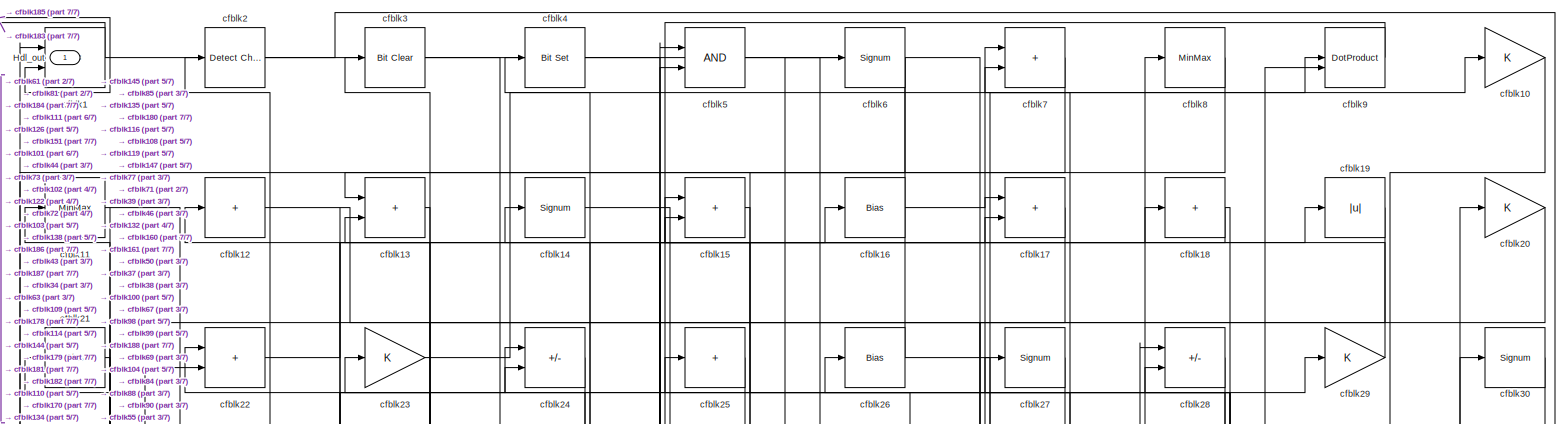
[diagram: root canvas - part 1/7, full width, top band]
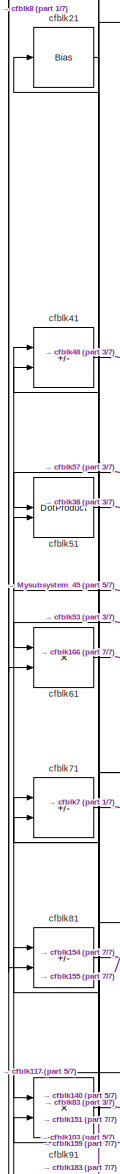
[diagram: root canvas - part 2/7, top left region]
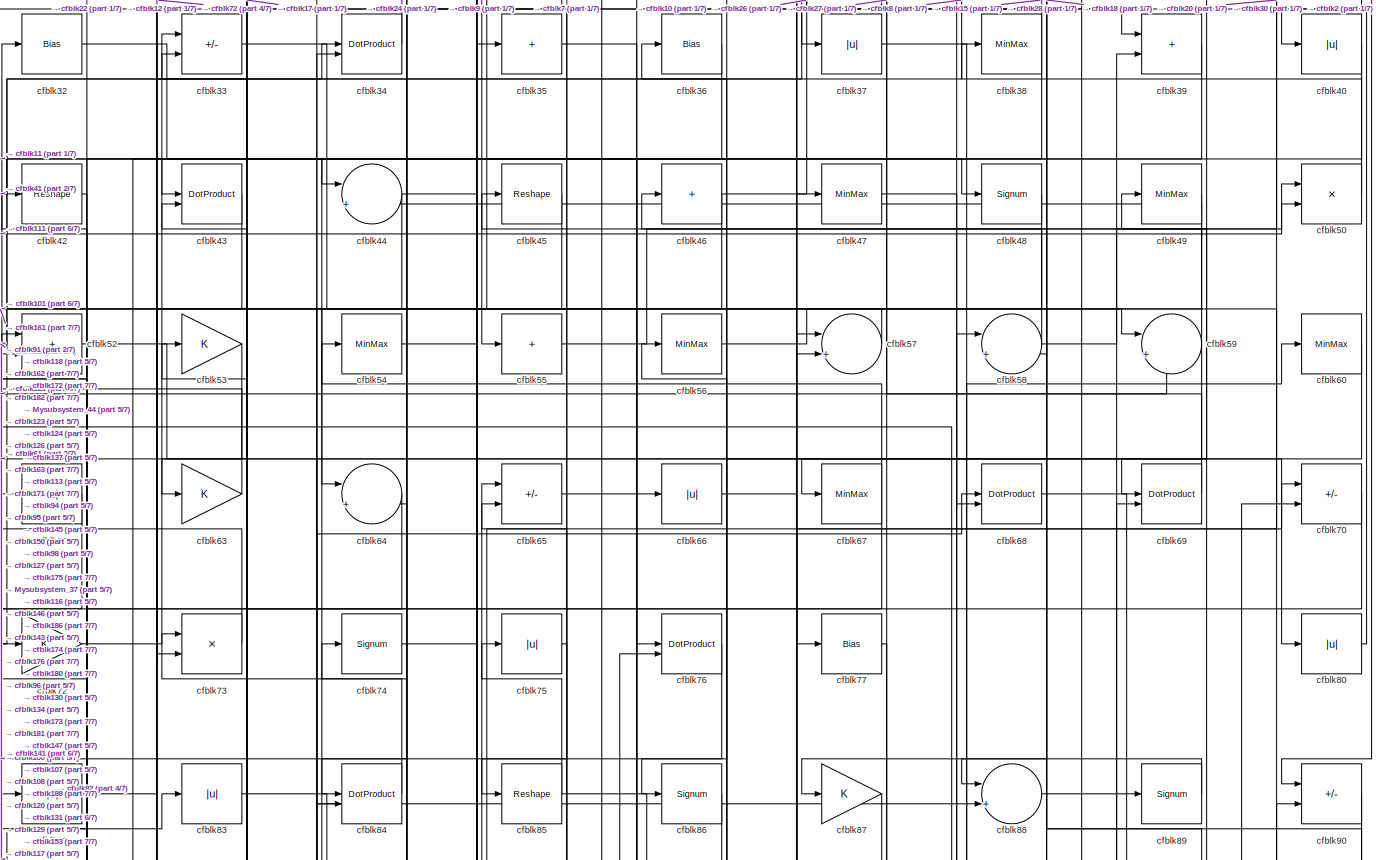
[diagram: root canvas - part 3/7, full width, top band]
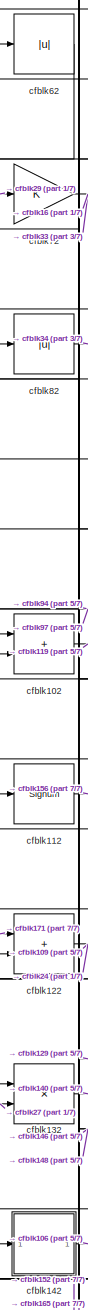
[diagram: root canvas - part 4/7, middle left region]
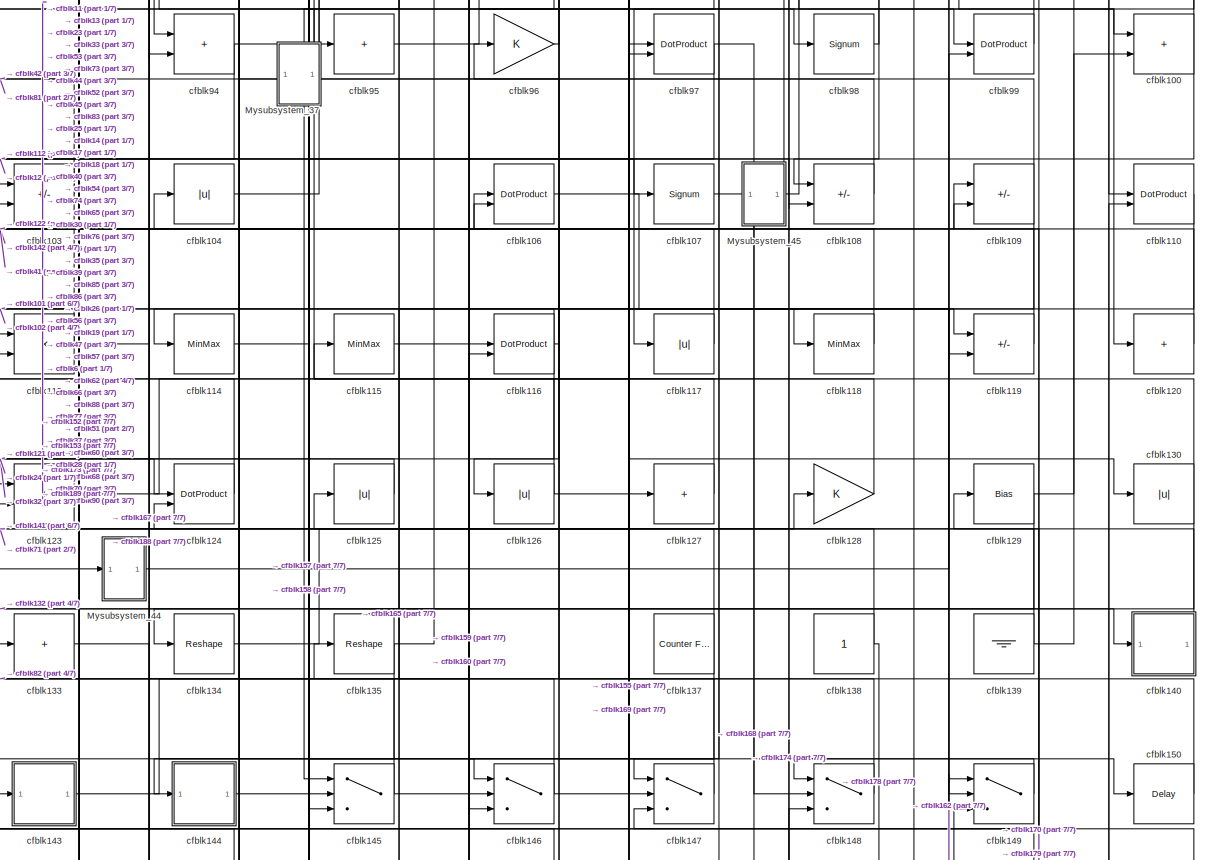
[diagram: root canvas - part 5/7, full width, middle band]
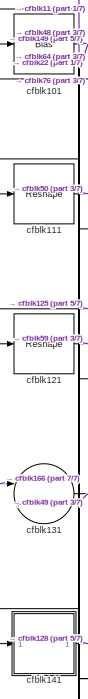
[diagram: root canvas - part 6/7, middle left region]
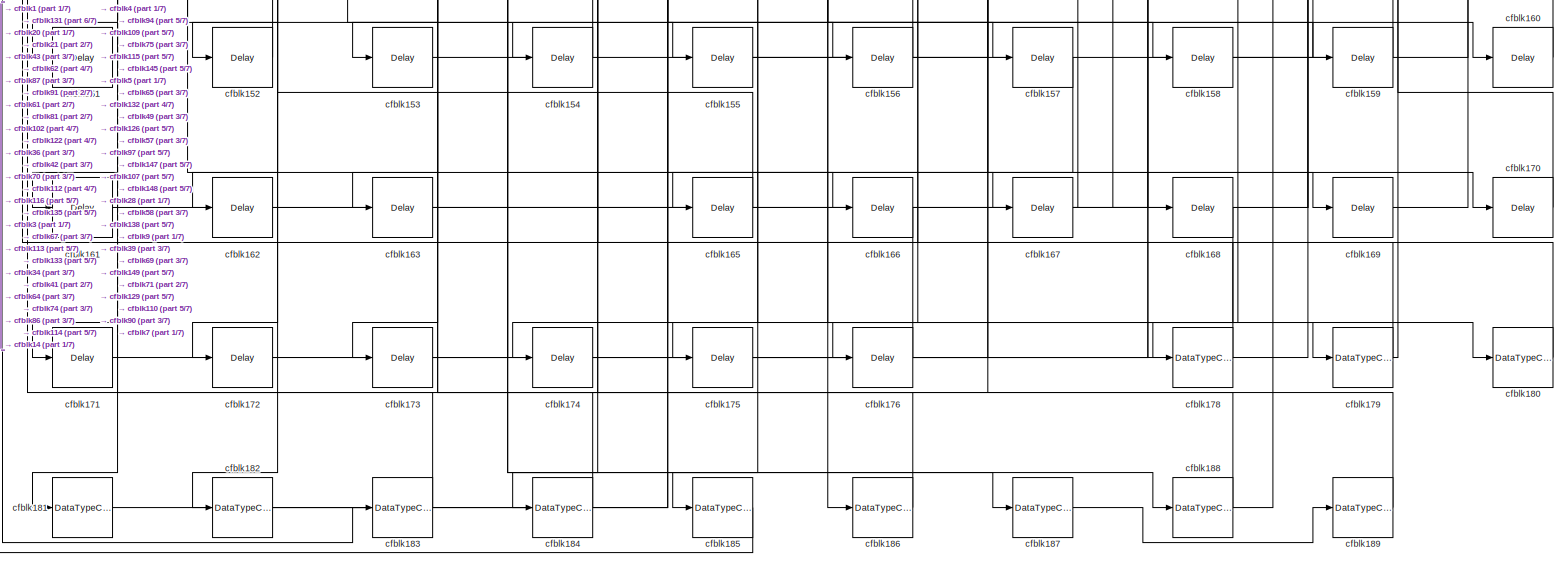
[diagram: root canvas - part 7/7, full width, bottom band]
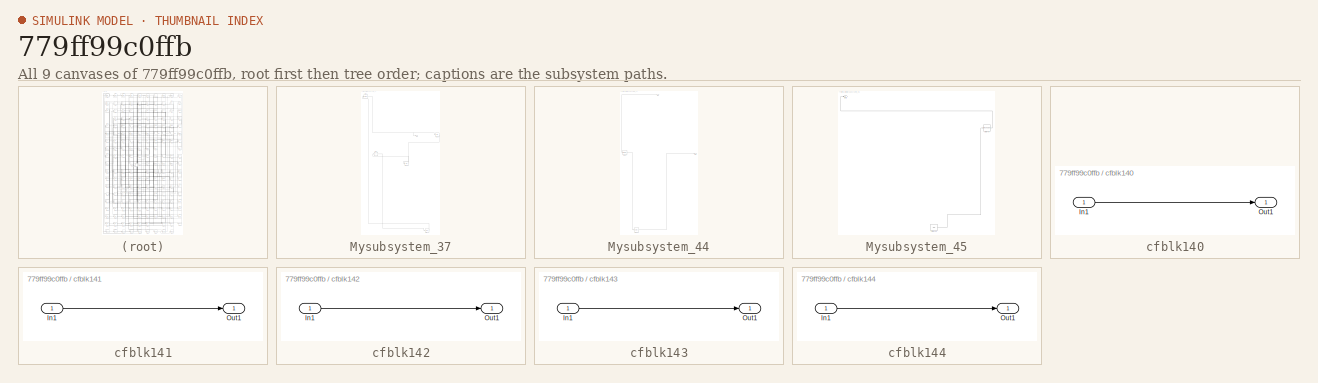
[diagram: thumbnail index - all 9 canvases of the model, root first then tree order]
MODEL slx_779ff99c0ffb
KIND model
CONFIG AbsTol = auto
CONFIG EnableMultiTasking = off
CONFIG FixedStep = auto
CONFIG MaxStep = auto
CONFIG MinStep = auto
CONFIG RelTol = 1e-3
CONFIG SampleTimeConstraint = Unconstrained
CONFIG SolverName = VariableStepAuto
CONFIG StartTime = 0.0
CONFIG StopTime = 10.0
BLOCK [Outport] Hdl_out
  OutDataTypeStr = uint8
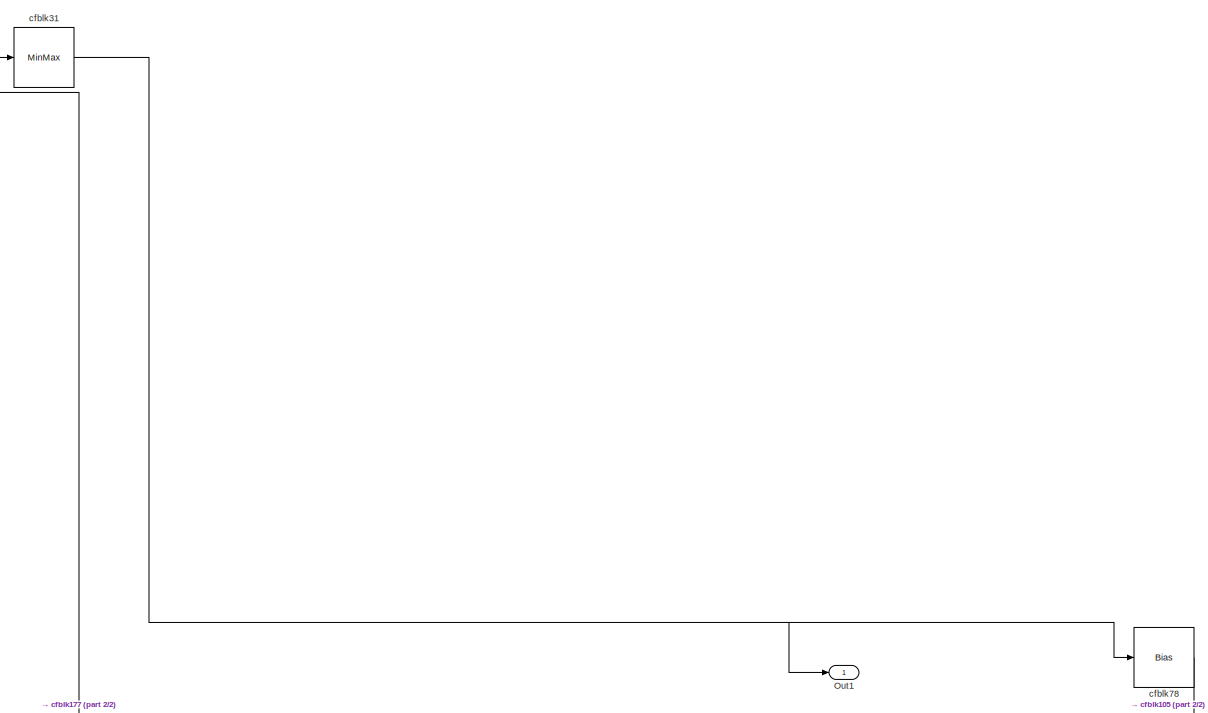
[diagram: Mysubsystem_37 - part 1/2, full width, top band]
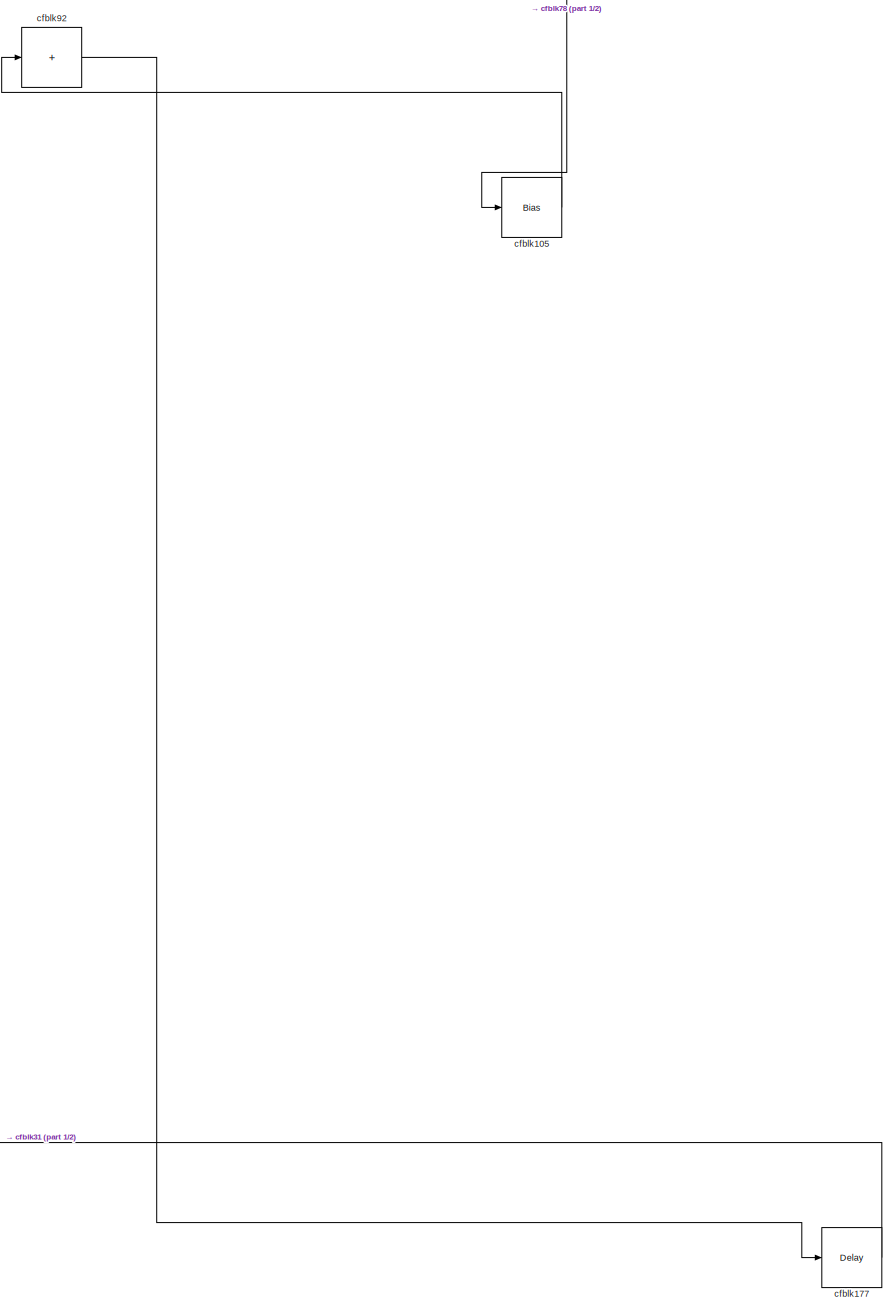
[diagram: Mysubsystem_37 - part 2/2, bottom center region]
BLOCK [SubSystem] Mysubsystem_37
  RTWFcnName = Mysubsystem_37
  RTWFcnNameOpts = User specified
  RTWFileNameOpts = Use function name
  RTWSystemCode = Reusable function
  TreatAsAtomicUnit = on
BLOCK [Outport] Mysubsystem_37/Out1
BLOCK [Bias] Mysubsystem_37/cfblk105
  Bias = 0.0
  SaturateOnIntegerOverflow = off
BLOCK [Delay] Mysubsystem_37/cfblk177
  InputPortMap = u0
  SampleTime = 1
BLOCK [MinMax] Mysubsystem_37/cfblk31
BLOCK [Bias] Mysubsystem_37/cfblk78
  Bias = 0.0
  SaturateOnIntegerOverflow = off
BLOCK [Sum] Mysubsystem_37/cfblk92
  IconShape = rectangular
  Inputs = +
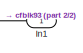
[diagram: Mysubsystem_44 - part 1/2, top center region]
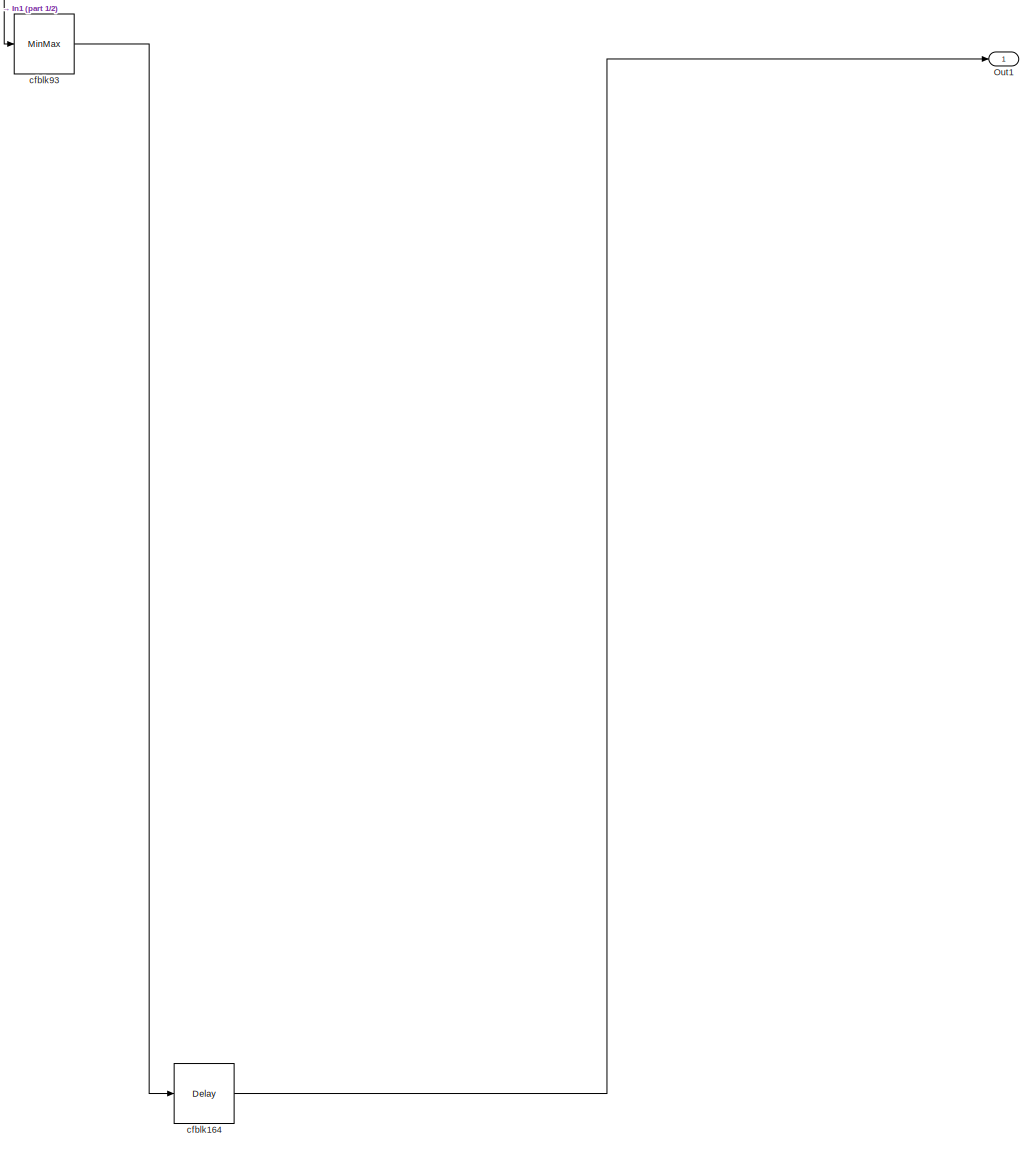
[diagram: Mysubsystem_44 - part 2/2, full width, bottom band]
BLOCK [SubSystem] Mysubsystem_44
  RTWFcnName = Mysubsystem_44
  RTWFcnNameOpts = User specified
  RTWFileNameOpts = Use function name
  RTWSystemCode = Reusable function
  TreatAsAtomicUnit = on
BLOCK [Inport] Mysubsystem_44/In1
BLOCK [Outport] Mysubsystem_44/Out1
BLOCK [Delay] Mysubsystem_44/cfblk164
  InputPortMap = u0
  SampleTime = 1
BLOCK [MinMax] Mysubsystem_44/cfblk93
BLOCK [SubSystem] Mysubsystem_45
  RTWFcnName = Mysubsystem_45
  RTWFcnNameOpts = User specified
  RTWFileNameOpts = Use function name
  RTWSystemCode = Reusable function
  TreatAsAtomicUnit = on
BLOCK [Outport] Mysubsystem_45/Out1
BLOCK [Ground] Mysubsystem_45/cfblk136
BLOCK [Reshape] Mysubsystem_45/cfblk79
BLOCK [RelationalOperator] cfblk1
  InputSameDT = off
  Operator = <=
  OutDataTypeStr = boolean
BLOCK [Gain] cfblk10
  OutDataTypeStr = uint8
BLOCK [Sum] cfblk100
  IconShape = rectangular
  OutDataTypeStr = uint8
BLOCK [Bias] cfblk101
  Bias = 0.0
  SaturateOnIntegerOverflow = off
BLOCK [Sum] cfblk102
  IconShape = rectangular
  OutDataTypeStr = uint8
BLOCK [Sum] cfblk103
  IconShape = rectangular
  Inputs = +-
  OutDataTypeStr = uint8
BLOCK [Abs] cfblk104
  OutDataTypeStr = uint8
  SaturateOnIntegerOverflow = off
BLOCK [DotProduct] cfblk106
  OutDataTypeStr = uint8
BLOCK [Signum] cfblk107
BLOCK [Sum] cfblk108
  IconShape = rectangular
  Inputs = +-
  OutDataTypeStr = uint8
BLOCK [Sum] cfblk109
  IconShape = rectangular
  Inputs = +-
  OutDataTypeStr = uint8
BLOCK [MinMax] cfblk11
  OutDataTypeStr = uint8
BLOCK [DotProduct] cfblk110
  OutDataTypeStr = uint8
BLOCK [Reshape] cfblk111
BLOCK [Signum] cfblk112
BLOCK [Product] cfblk113
  Inputs = */
  OutDataTypeStr = uint8
  RndMeth = Zero
  SaturateOnIntegerOverflow = on
BLOCK [MinMax] cfblk114
  OutDataTypeStr = uint8
BLOCK [MinMax] cfblk115
  OutDataTypeStr = uint8
BLOCK [DotProduct] cfblk116
  OutDataTypeStr = uint8
BLOCK [Abs] cfblk117
  OutDataTypeStr = uint8
  SaturateOnIntegerOverflow = off
BLOCK [MinMax] cfblk118
  OutDataTypeStr = uint8
BLOCK [Sum] cfblk119
  IconShape = rectangular
  Inputs = +-
  OutDataTypeStr = uint8
BLOCK [Sum] cfblk12
  IconShape = rectangular
  Inputs = +
  OutDataTypeStr = uint8
BLOCK [Sum] cfblk120
  IconShape = rectangular
  Inputs = +
  OutDataTypeStr = uint8
BLOCK [Reshape] cfblk121
BLOCK [Sum] cfblk122
  IconShape = rectangular
  OutDataTypeStr = uint8
BLOCK [Sum] cfblk123
  IconShape = rectangular
  OutDataTypeStr = uint8
BLOCK [DotProduct] cfblk124
  OutDataTypeStr = uint8
BLOCK [Abs] cfblk125
  OutDataTypeStr = uint8
  SaturateOnIntegerOverflow = off
BLOCK [Abs] cfblk126
  OutDataTypeStr = uint8
  SaturateOnIntegerOverflow = off
BLOCK [Sum] cfblk127
  IconShape = rectangular
  Inputs = +
  OutDataTypeStr = uint8
BLOCK [Gain] cfblk128
  OutDataTypeStr = uint8
BLOCK [Bias] cfblk129
  Bias = 0.0
  SaturateOnIntegerOverflow = off
BLOCK [Sum] cfblk13
  IconShape = rectangular
  OutDataTypeStr = uint8
BLOCK [Abs] cfblk130
  OutDataTypeStr = uint8
  SaturateOnIntegerOverflow = off
BLOCK [Sum] cfblk131
  Inputs = |++
  OutDataTypeStr = uint8
BLOCK [Product] cfblk132
  Inputs = */
  OutDataTypeStr = uint8
  RndMeth = Zero
  SaturateOnIntegerOverflow = on
BLOCK [Sum] cfblk133
  IconShape = rectangular
  Inputs = +
  OutDataTypeStr = uint8
BLOCK [Reshape] cfblk134
BLOCK [Reshape] cfblk135
BLOCK [Reference] cfblk137  REF=hdlsllib/Sources/Counter
Free-Running
  SourceBlock = hdlsllib/Sources/Counter\nFree-Running
  SourceType = Counter Free-Running
BLOCK [Constant] cfblk138
  OutDataTypeStr = uint8
  SampleTime = -1
BLOCK [Ground] cfblk139
BLOCK [Signum] cfblk14
BLOCK [SubSystem] cfblk140
  LibrarySourceBlock = hdlsllib/Ports &\nSubsystems/Subsystem
BLOCK [Inport] cfblk140/In1
BLOCK [Outport] cfblk140/Out1
BLOCK [SubSystem] cfblk141
  LibrarySourceBlock = hdlsllib/Ports &\nSubsystems/Subsystem
BLOCK [Inport] cfblk141/In1
BLOCK [Outport] cfblk141/Out1
BLOCK [SubSystem] cfblk142
  LibrarySourceBlock = hdlsllib/Ports &\nSubsystems/Subsystem
BLOCK [Inport] cfblk142/In1
BLOCK [Outport] cfblk142/Out1
BLOCK [SubSystem] cfblk143
  LibrarySourceBlock = hdlsllib/Ports &\nSubsystems/Subsystem
BLOCK [Inport] cfblk143/In1
BLOCK [Outport] cfblk143/Out1
BLOCK [SubSystem] cfblk144
  LibrarySourceBlock = hdlsllib/Ports &\nSubsystems/Subsystem
BLOCK [Inport] cfblk144/In1
BLOCK [Outport] cfblk144/Out1
BLOCK [Switch] cfblk145
  InputSameDT = off
  OutDataTypeStr = uint8
  SaturateOnIntegerOverflow = off
BLOCK [Switch] cfblk146
  InputSameDT = off
  OutDataTypeStr = uint8
  SaturateOnIntegerOverflow = off
BLOCK [Switch] cfblk147
  InputSameDT = off
  OutDataTypeStr = uint8
  SaturateOnIntegerOverflow = off
BLOCK [Switch] cfblk148
  InputSameDT = off
  OutDataTypeStr = uint8
  SaturateOnIntegerOverflow = off
BLOCK [Switch] cfblk149
  InputSameDT = off
  OutDataTypeStr = uint8
  SaturateOnIntegerOverflow = off
BLOCK [Sum] cfblk15
  IconShape = rectangular
  OutDataTypeStr = uint8
BLOCK [Delay] cfblk150
  InputPortMap = u0
  SampleTime = 1
BLOCK [Delay] cfblk151
  InputPortMap = u0
  SampleTime = 1
BLOCK [Delay] cfblk152
  InputPortMap = u0
  SampleTime = 1
BLOCK [Delay] cfblk153
  InputPortMap = u0
  SampleTime = 1
BLOCK [Delay] cfblk154
  InputPortMap = u0
  SampleTime = 1
BLOCK [Delay] cfblk155
  InputPortMap = u0
  SampleTime = 1
BLOCK [Delay] cfblk156
  InputPortMap = u0
  SampleTime = 1
BLOCK [Delay] cfblk157
  InputPortMap = u0
  SampleTime = 1
BLOCK [Delay] cfblk158
  InputPortMap = u0
  SampleTime = 1
BLOCK [Delay] cfblk159
  InputPortMap = u0
  SampleTime = 1
BLOCK [Bias] cfblk16
  Bias = 0.0
  SaturateOnIntegerOverflow = off
BLOCK [Delay] cfblk160
  InputPortMap = u0
  SampleTime = 1
BLOCK [Delay] cfblk161
  InputPortMap = u0
  SampleTime = 1
BLOCK [Delay] cfblk162
  InputPortMap = u0
  SampleTime = 1
BLOCK [Delay] cfblk163
  InputPortMap = u0
  SampleTime = 1
BLOCK [Delay] cfblk165
  InputPortMap = u0
  SampleTime = 1
BLOCK [Delay] cfblk166
  InputPortMap = u0
  SampleTime = 1
BLOCK [Delay] cfblk167
  InputPortMap = u0
  SampleTime = 1
BLOCK [Delay] cfblk168
  InputPortMap = u0
  SampleTime = 1
BLOCK [Delay] cfblk169
  InputPortMap = u0
  SampleTime = 1
BLOCK [Sum] cfblk17
  IconShape = rectangular
  OutDataTypeStr = uint8
BLOCK [Delay] cfblk170
  InputPortMap = u0
  SampleTime = 1
BLOCK [Delay] cfblk171
  InputPortMap = u0
  SampleTime = 1
BLOCK [Delay] cfblk172
  InputPortMap = u0
  SampleTime = 1
BLOCK [Delay] cfblk173
  InputPortMap = u0
  SampleTime = 1
BLOCK [Delay] cfblk174
  InputPortMap = u0
  SampleTime = 1
BLOCK [Delay] cfblk175
  InputPortMap = u0
  SampleTime = 1
BLOCK [Delay] cfblk176
  InputPortMap = u0
  SampleTime = 1
BLOCK [DataTypeConversion] cfblk178
  OutDataTypeStr = uint8
  RndMeth = Floor
  SaturateOnIntegerOverflow = off
BLOCK [DataTypeConversion] cfblk179
  OutDataTypeStr = uint8
  RndMeth = Floor
  SaturateOnIntegerOverflow = off
BLOCK [Sum] cfblk18
  IconShape = rectangular
  Inputs = +
  OutDataTypeStr = uint8
BLOCK [DataTypeConversion] cfblk180
  OutDataTypeStr = uint8
  RndMeth = Floor
  SaturateOnIntegerOverflow = off
BLOCK [DataTypeConversion] cfblk181
  OutDataTypeStr = uint8
  RndMeth = Floor
  SaturateOnIntegerOverflow = off
BLOCK [DataTypeConversion] cfblk182
  OutDataTypeStr = uint8
  RndMeth = Floor
  SaturateOnIntegerOverflow = off
BLOCK [DataTypeConversion] cfblk183
  OutDataTypeStr = uint8
  RndMeth = Floor
  SaturateOnIntegerOverflow = off
BLOCK [DataTypeConversion] cfblk184
  OutDataTypeStr = uint8
  RndMeth = Floor
  SaturateOnIntegerOverflow = off
BLOCK [DataTypeConversion] cfblk185
  OutDataTypeStr = uint8
  RndMeth = Floor
  SaturateOnIntegerOverflow = off
BLOCK [DataTypeConversion] cfblk186
  OutDataTypeStr = uint8
  RndMeth = Floor
  SaturateOnIntegerOverflow = off
BLOCK [DataTypeConversion] cfblk187
  OutDataTypeStr = uint8
  RndMeth = Floor
  SaturateOnIntegerOverflow = off
BLOCK [DataTypeConversion] cfblk188
  OutDataTypeStr = uint8
  RndMeth = Floor
  SaturateOnIntegerOverflow = off
BLOCK [DataTypeConversion] cfblk189
  OutDataTypeStr = uint8
  RndMeth = Floor
  SaturateOnIntegerOverflow = off
BLOCK [Abs] cfblk19
  OutDataTypeStr = uint8
  SaturateOnIntegerOverflow = off
BLOCK [Reference] cfblk2  REF=simulink/Logic and Bit
Operations/Detect
Change
  LibrarySourceBlock = hdlsllib/Logic and Bit\nOperations/Detect\nChange
  SourceBlock = simulink/Logic and Bit\nOperations/Detect\nChange
  SourceType = Detect Change
BLOCK [Gain] cfblk20
  OutDataTypeStr = uint8
BLOCK [Bias] cfblk21
  Bias = 0.0
  SaturateOnIntegerOverflow = off
BLOCK [Sum] cfblk22
  IconShape = rectangular
  OutDataTypeStr = uint8
BLOCK [Gain] cfblk23
  OutDataTypeStr = uint8
BLOCK [Sum] cfblk24
  IconShape = rectangular
  Inputs = +-
  OutDataTypeStr = uint8
BLOCK [Sum] cfblk25
  IconShape = rectangular
  Inputs = +
  OutDataTypeStr = uint8
BLOCK [Bias] cfblk26
  Bias = 0.0
  SaturateOnIntegerOverflow = off
BLOCK [Signum] cfblk27
BLOCK [Sum] cfblk28
  IconShape = rectangular
  Inputs = +-
  OutDataTypeStr = uint8
BLOCK [Gain] cfblk29
  OutDataTypeStr = uint8
BLOCK [Reference] cfblk3  REF=simulink/Logic and Bit
Operations/Bit Clear
  LibrarySourceBlock = hdlsllib/Logic and Bit\nOperations/Bit Clear
  SourceBlock = simulink/Logic and Bit\nOperations/Bit Clear
  SourceType = Bit Clear
BLOCK [Signum] cfblk30
BLOCK [Bias] cfblk32
  Bias = 0.0
  SaturateOnIntegerOverflow = off
BLOCK [Sum] cfblk33
  IconShape = rectangular
  Inputs = +-
  OutDataTypeStr = uint8
BLOCK [DotProduct] cfblk34
  OutDataTypeStr = uint8
BLOCK [Sum] cfblk35
  IconShape = rectangular
  Inputs = +
  OutDataTypeStr = uint8
BLOCK [Bias] cfblk36
  Bias = 0.0
  SaturateOnIntegerOverflow = off
BLOCK [Abs] cfblk37
  OutDataTypeStr = uint8
  SaturateOnIntegerOverflow = off
BLOCK [MinMax] cfblk38
  OutDataTypeStr = uint8
BLOCK [Sum] cfblk39
  IconShape = rectangular
  OutDataTypeStr = uint8
BLOCK [Reference] cfblk4  REF=simulink/Logic and Bit
Operations/Bit Set
  LibrarySourceBlock = hdlsllib/Logic and Bit\nOperations/Bit Set
  SourceBlock = simulink/Logic and Bit\nOperations/Bit Set
  SourceType = Bit Set
BLOCK [Abs] cfblk40
  OutDataTypeStr = uint8
  SaturateOnIntegerOverflow = off
BLOCK [Sum] cfblk41
  IconShape = rectangular
  Inputs = +-
  OutDataTypeStr = uint8
BLOCK [Reshape] cfblk42
BLOCK [DotProduct] cfblk43
  OutDataTypeStr = uint8
BLOCK [Sum] cfblk44
  Inputs = |++
  OutDataTypeStr = uint8
BLOCK [Reshape] cfblk45
BLOCK [Sum] cfblk46
  IconShape = rectangular
  Inputs = +
  OutDataTypeStr = uint8
BLOCK [MinMax] cfblk47
  OutDataTypeStr = uint8
BLOCK [Signum] cfblk48
BLOCK [MinMax] cfblk49
  OutDataTypeStr = uint8
BLOCK [Logic] cfblk5
  AllPortsSameDT = off
  OutDataTypeStr = boolean
BLOCK [Product] cfblk50
  Inputs = */
  OutDataTypeStr = uint8
  RndMeth = Zero
  SaturateOnIntegerOverflow = on
BLOCK [DotProduct] cfblk51
  OutDataTypeStr = uint8
BLOCK [Sum] cfblk52
  IconShape = rectangular
  OutDataTypeStr = uint8
BLOCK [Gain] cfblk53
  OutDataTypeStr = uint8
BLOCK [MinMax] cfblk54
  OutDataTypeStr = uint8
BLOCK [Sum] cfblk55
  IconShape = rectangular
  Inputs = +
  OutDataTypeStr = uint8
BLOCK [MinMax] cfblk56
  OutDataTypeStr = uint8
BLOCK [Sum] cfblk57
  Inputs = |++
  OutDataTypeStr = uint8
BLOCK [Sum] cfblk58
  Inputs = |++
  OutDataTypeStr = uint8
BLOCK [Sum] cfblk59
  Inputs = |++
  OutDataTypeStr = uint8
BLOCK [Signum] cfblk6
BLOCK [MinMax] cfblk60
  OutDataTypeStr = uint8
BLOCK [Product] cfblk61
  Inputs = */
  OutDataTypeStr = uint8
  RndMeth = Zero
  SaturateOnIntegerOverflow = on
BLOCK [Abs] cfblk62
  OutDataTypeStr = uint8
  SaturateOnIntegerOverflow = off
BLOCK [Gain] cfblk63
  OutDataTypeStr = uint8
BLOCK [Sum] cfblk64
  Inputs = |++
  OutDataTypeStr = uint8
BLOCK [Sum] cfblk65
  IconShape = rectangular
  Inputs = +-
  OutDataTypeStr = uint8
BLOCK [Abs] cfblk66
  OutDataTypeStr = uint8
  SaturateOnIntegerOverflow = off
BLOCK [MinMax] cfblk67
  OutDataTypeStr = uint8
BLOCK [DotProduct] cfblk68
  OutDataTypeStr = uint8
BLOCK [DotProduct] cfblk69
  OutDataTypeStr = uint8
BLOCK [Sum] cfblk7
  IconShape = rectangular
  OutDataTypeStr = uint8
BLOCK [Sum] cfblk70
  IconShape = rectangular
  Inputs = +-
  OutDataTypeStr = uint8
BLOCK [Sum] cfblk71
  IconShape = rectangular
  Inputs = +-
  OutDataTypeStr = uint8
BLOCK [Gain] cfblk72
  OutDataTypeStr = uint8
BLOCK [Product] cfblk73
  Inputs = */
  OutDataTypeStr = uint8
  RndMeth = Zero
  SaturateOnIntegerOverflow = on
BLOCK [Signum] cfblk74
BLOCK [Abs] cfblk75
  OutDataTypeStr = uint8
  SaturateOnIntegerOverflow = off
BLOCK [DotProduct] cfblk76
  OutDataTypeStr = uint8
BLOCK [Bias] cfblk77
  Bias = 0.0
  SaturateOnIntegerOverflow = off
BLOCK [MinMax] cfblk8
  OutDataTypeStr = uint8
BLOCK [Abs] cfblk80
  OutDataTypeStr = uint8
  SaturateOnIntegerOverflow = off
BLOCK [Sum] cfblk81
  IconShape = rectangular
  Inputs = +-
  OutDataTypeStr = uint8
BLOCK [Abs] cfblk82
  OutDataTypeStr = uint8
  SaturateOnIntegerOverflow = off
BLOCK [Abs] cfblk83
  OutDataTypeStr = uint8
  SaturateOnIntegerOverflow = off
BLOCK [DotProduct] cfblk84
  OutDataTypeStr = uint8
BLOCK [Reshape] cfblk85
BLOCK [Signum] cfblk86
BLOCK [Gain] cfblk87
  OutDataTypeStr = uint8
BLOCK [Sum] cfblk88
  Inputs = |++
  OutDataTypeStr = uint8
BLOCK [Signum] cfblk89
BLOCK [DotProduct] cfblk9
  OutDataTypeStr = uint8
BLOCK [Sum] cfblk90
  IconShape = rectangular
  Inputs = +-
  OutDataTypeStr = uint8
BLOCK [Product] cfblk91
  Inputs = */
  OutDataTypeStr = uint8
  RndMeth = Zero
  SaturateOnIntegerOverflow = on
BLOCK [Sum] cfblk94
  IconShape = rectangular
  OutDataTypeStr = uint8
BLOCK [Sum] cfblk95
  IconShape = rectangular
  Inputs = +
  OutDataTypeStr = uint8
BLOCK [Gain] cfblk96
  OutDataTypeStr = uint8
BLOCK [DotProduct] cfblk97
  OutDataTypeStr = uint8
BLOCK [Signum] cfblk98
BLOCK [DotProduct] cfblk99
  OutDataTypeStr = uint8
LINE Mysubsystem_37/cfblk105:1 -> Mysubsystem_37/cfblk92:1
LINE Mysubsystem_37/cfblk177:1 -> Mysubsystem_37/cfblk31:1
NET Mysubsystem_37/cfblk31:1 -> Mysubsystem_37/Out1:1, Mysubsystem_37/cfblk78:1
LINE Mysubsystem_37/cfblk78:1 -> Mysubsystem_37/cfblk105:1
LINE Mysubsystem_37/cfblk92:1 -> Mysubsystem_37/cfblk177:1
LINE Mysubsystem_37:1 -> cfblk76:2
LINE Mysubsystem_44/In1:1 -> Mysubsystem_44/cfblk93:1
LINE Mysubsystem_44/cfblk164:1 -> Mysubsystem_44/Out1:1
LINE Mysubsystem_44/cfblk93:1 -> Mysubsystem_44/cfblk164:1
LINE Mysubsystem_44:1 -> cfblk99:2
LINE Mysubsystem_45/cfblk136:1 -> Mysubsystem_45/cfblk79:1
LINE Mysubsystem_45/cfblk79:1 -> Mysubsystem_45/Out1:1
LINE Mysubsystem_45:1 -> cfblk51:2
NET cfblk100:1 -> cfblk123:1, cfblk24:1
NET cfblk101:1 -> cfblk149:2, cfblk22:2
NET cfblk102:1 -> cfblk119:1, cfblk29:1, cfblk72:1
LINE cfblk103:1 -> cfblk81:1
LINE cfblk104:1 -> cfblk30:1
LINE cfblk106:1 -> cfblk118:1
NET cfblk107:1 -> cfblk168:1, cfblk60:1
LINE cfblk108:1 -> cfblk42:1
NET cfblk109:1 -> cfblk14:1, cfblk165:1
LINE cfblk10:1 -> cfblk69:1
LINE cfblk110:1 -> cfblk126:1
LINE cfblk111:1 -> cfblk50:1
LINE cfblk112:1 -> cfblk156:1
NET cfblk113:1 -> cfblk167:1, cfblk52:2, cfblk68:1
NET cfblk114:1 -> cfblk158:1, cfblk18:1
LINE cfblk115:1 -> cfblk160:1
NET cfblk116:1 -> cfblk114:1, cfblk173:1, cfblk26:1
LINE cfblk117:1 -> cfblk41:1
LINE cfblk118:1 -> cfblk52:1
LINE cfblk119:1 -> cfblk13:2
NET cfblk11:1 -> cfblk111:1, cfblk44:1
LINE cfblk120:1 -> cfblk104:1
LINE cfblk121:1 -> cfblk59:2
NET cfblk122:1 -> cfblk109:1, cfblk24:2
NET cfblk123:1 -> cfblk47:1, cfblk88:2
LINE cfblk124:1 -> cfblk33:2
LINE cfblk125:1 -> cfblk121:1
NET cfblk126:1 -> cfblk11:1, cfblk169:1, cfblk53:1
LINE cfblk127:1 -> cfblk65:1
LINE cfblk128:1 -> cfblk115:1
NET cfblk129:1 -> cfblk142:1, cfblk70:2
NET cfblk12:1 -> cfblk108:2, cfblk77:1
NET cfblk130:1 -> cfblk106:2, cfblk145:3
LINE cfblk131:1 -> cfblk49:1
LINE cfblk132:1 -> cfblk140:1
LINE cfblk133:1 -> cfblk188:1
LINE cfblk134:1 -> cfblk57:1
NET cfblk135:1 -> cfblk152:1, cfblk153:1, cfblk6:1
NET cfblk137:1 -> cfblk146:3, cfblk73:1
NET cfblk138:1 -> cfblk178:1, cfblk23:1
NET cfblk139:1 -> cfblk100:2, cfblk125:1
LINE cfblk13:1 -> cfblk103:1
LINE cfblk140/In1:1 -> cfblk140/Out1:1
LINE cfblk140:1 -> cfblk71:1
LINE cfblk141/In1:1 -> cfblk141/Out1:1
LINE cfblk141:1 -> cfblk128:1
LINE cfblk142/In1:1 -> cfblk142/Out1:1
LINE cfblk142:1 -> cfblk106:1
LINE cfblk143/In1:1 -> cfblk143/Out1:1
NET cfblk143:1 -> cfblk116:2, cfblk146:1, cfblk35:1
LINE cfblk144/In1:1 -> cfblk144/Out1:1
LINE cfblk144:1 -> cfblk17:2
NET cfblk145:1 -> cfblk103:2, cfblk159:1
NET cfblk146:1 -> cfblk124:2, cfblk62:1, cfblk70:1
NET cfblk147:1 -> cfblk144:1, cfblk96:1
NET cfblk148:1 -> cfblk135:1, cfblk82:1
LINE cfblk149:1 -> cfblk148:1
NET cfblk14:1 -> cfblk110:1, cfblk170:1
LINE cfblk150:1 -> cfblk65:2
LINE cfblk151:1 -> cfblk91:2
LINE cfblk152:1 -> cfblk102:1
LINE cfblk153:1 -> cfblk90:2
LINE cfblk154:1 -> cfblk41:2
LINE cfblk155:1 -> cfblk97:2
LINE cfblk156:1 -> cfblk132:1
LINE cfblk157:1 -> cfblk185:1
LINE cfblk158:1 -> cfblk149:3
LINE cfblk159:1 -> cfblk71:2
LINE cfblk15:1 -> cfblk145:1
LINE cfblk160:1 -> cfblk7:2
LINE cfblk161:1 -> cfblk28:1
LINE cfblk162:1 -> cfblk149:1
LINE cfblk163:1 -> cfblk69:2
LINE cfblk165:1 -> cfblk122:2
LINE cfblk166:1 -> cfblk131:1
LINE cfblk167:1 -> cfblk147:3
LINE cfblk168:1 -> cfblk184:1
LINE cfblk169:1 -> cfblk110:2
LINE cfblk16:1 -> cfblk17:1
LINE cfblk170:1 -> cfblk109:2
LINE cfblk171:1 -> cfblk34:2
LINE cfblk172:1 -> cfblk39:2
LINE cfblk173:1 -> cfblk57:2
LINE cfblk174:1 -> cfblk148:3
LINE cfblk175:1 -> cfblk58:1
LINE cfblk176:1 -> cfblk64:2
LINE cfblk178:1 -> cfblk4:1
NET cfblk179:1 -> cfblk113:2, cfblk129:1
LINE cfblk17:1 -> cfblk43:1
LINE cfblk180:1 -> cfblk36:1
LINE cfblk181:1 -> cfblk5:1
LINE cfblk182:1 -> cfblk5:2
LINE cfblk183:1 -> cfblk21:1
LINE cfblk184:1 -> cfblk1:1
LINE cfblk185:1 -> cfblk1:2
LINE cfblk186:1 -> cfblk3:1
LINE cfblk187:1 -> cfblk189:1
NET cfblk188:1 -> cfblk74:1, cfblk97:1, cfblk9:2
LINE cfblk189:1 -> cfblk133:1
NET cfblk18:1 -> cfblk15:2, cfblk67:1
LINE cfblk19:1 -> cfblk147:2
LINE cfblk1:1 -> cfblk183:1
LINE cfblk20:1 -> cfblk151:1
LINE cfblk21:1 -> cfblk91:1
LINE cfblk22:1 -> cfblk19:1
LINE cfblk23:1 -> cfblk9:1
LINE cfblk24:1 -> cfblk63:1
LINE cfblk25:1 -> cfblk134:1
NET cfblk26:1 -> Hdl_out:1, cfblk39:1
LINE cfblk27:1 -> cfblk132:2
LINE cfblk28:1 -> cfblk37:1
LINE cfblk29:1 -> cfblk2:1
LINE cfblk2:1 -> cfblk90:1
NET cfblk30:1 -> cfblk84:1, cfblk88:1
NET cfblk32:1 -> cfblk124:1, cfblk66:1
LINE cfblk33:1 -> cfblk76:1
LINE cfblk34:1 -> cfblk12:1
LINE cfblk35:1 -> cfblk116:1
LINE cfblk36:1 -> cfblk162:1
LINE cfblk37:1 -> cfblk100:1
NET cfblk38:1 -> cfblk15:1, cfblk64:1
NET cfblk39:1 -> Mysubsystem_44:1, cfblk146:2
LINE cfblk3:1 -> cfblk187:1
LINE cfblk40:1 -> cfblk145:2
LINE cfblk41:1 -> cfblk48:1
LINE cfblk42:1 -> cfblk182:1
LINE cfblk43:1 -> cfblk161:1
NET cfblk44:1 -> cfblk107:1, cfblk123:2, cfblk94:2
LINE cfblk45:1 -> cfblk94:1
NET cfblk46:1 -> cfblk10:1, cfblk73:2
LINE cfblk47:1 -> cfblk68:2
LINE cfblk48:1 -> cfblk101:1
NET cfblk49:1 -> cfblk176:1, cfblk58:2
LINE cfblk4:1 -> cfblk179:1
LINE cfblk50:1 -> cfblk8:1
LINE cfblk51:1 -> cfblk38:1
LINE cfblk52:1 -> cfblk80:1
LINE cfblk53:1 -> cfblk61:1
LINE cfblk54:1 -> cfblk98:1
LINE cfblk55:1 -> cfblk20:1
LINE cfblk56:1 -> cfblk59:1
LINE cfblk57:1 -> cfblk51:1
NET cfblk58:1 -> cfblk46:1, cfblk50:2
NET cfblk59:1 -> cfblk44:2, cfblk45:1, cfblk86:1
LINE cfblk5:1 -> cfblk180:1
NET cfblk60:1 -> cfblk108:1, cfblk113:1, cfblk84:2
LINE cfblk61:1 -> cfblk166:1
NET cfblk62:1 -> cfblk122:1, cfblk171:1
LINE cfblk63:1 -> cfblk32:1
LINE cfblk64:1 -> cfblk131:2
LINE cfblk65:1 -> cfblk186:1
LINE cfblk66:1 -> cfblk130:1
NET cfblk67:1 -> cfblk163:1, cfblk54:1
LINE cfblk68:1 -> cfblk120:1
LINE cfblk69:1 -> cfblk27:1
NET cfblk6:1 -> cfblk119:2, cfblk13:1
LINE cfblk70:1 -> cfblk172:1
LINE cfblk71:1 -> cfblk7:1
NET cfblk72:1 -> cfblk16:1, cfblk33:1
LINE cfblk73:1 -> cfblk22:1
LINE cfblk74:1 -> cfblk150:1
LINE cfblk75:1 -> cfblk175:1
LINE cfblk76:1 -> cfblk141:1
LINE cfblk77:1 -> cfblk147:1
LINE cfblk7:1 -> cfblk85:1
LINE cfblk80:1 -> cfblk40:1
NET cfblk81:1 -> cfblk154:1, cfblk155:1
LINE cfblk82:1 -> cfblk34:1
LINE cfblk83:1 -> cfblk95:1
LINE cfblk84:1 -> cfblk43:2
NET cfblk85:1 -> cfblk127:1, cfblk75:1
NET cfblk86:1 -> cfblk143:1, cfblk174:1
LINE cfblk87:1 -> cfblk181:1
LINE cfblk88:1 -> cfblk89:1
LINE cfblk89:1 -> cfblk87:1
NET cfblk8:1 -> cfblk61:2, cfblk81:2
LINE cfblk90:1 -> cfblk117:1
LINE cfblk91:1 -> cfblk83:1
NET cfblk94:1 -> cfblk112:1, cfblk157:1
LINE cfblk95:1 -> cfblk99:1
LINE cfblk96:1 -> cfblk56:1
NET cfblk97:1 -> cfblk102:2, cfblk148:2
LINE cfblk98:1 -> cfblk28:2
LINE cfblk99:1 -> cfblk25:1
LINE cfblk9:1 -> cfblk55:1
note: NET lines group one-source signal fan-out (src -> all destinations, sorted); 1:1 wires keep LINE
